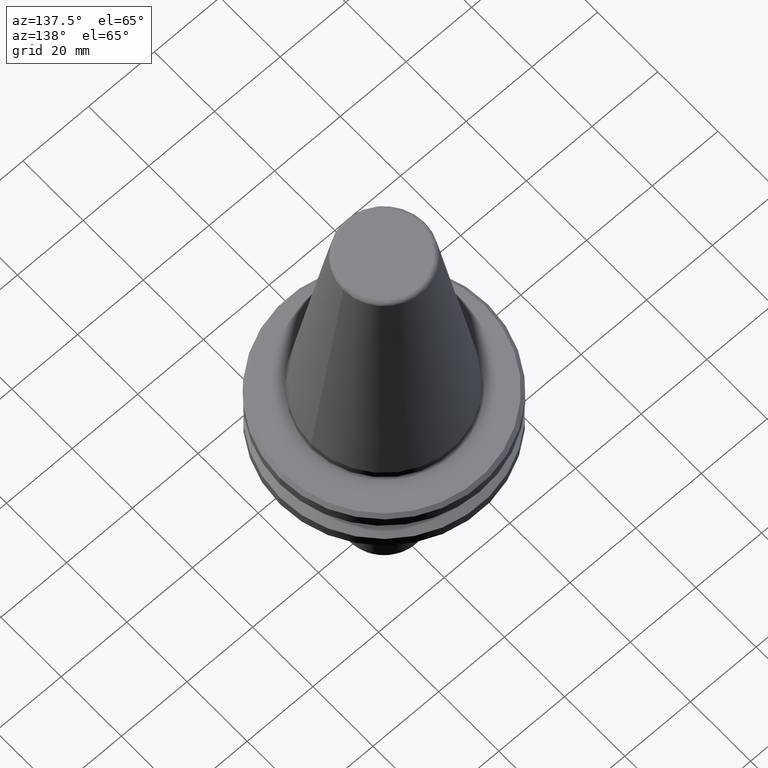
[diagram: clean part render]
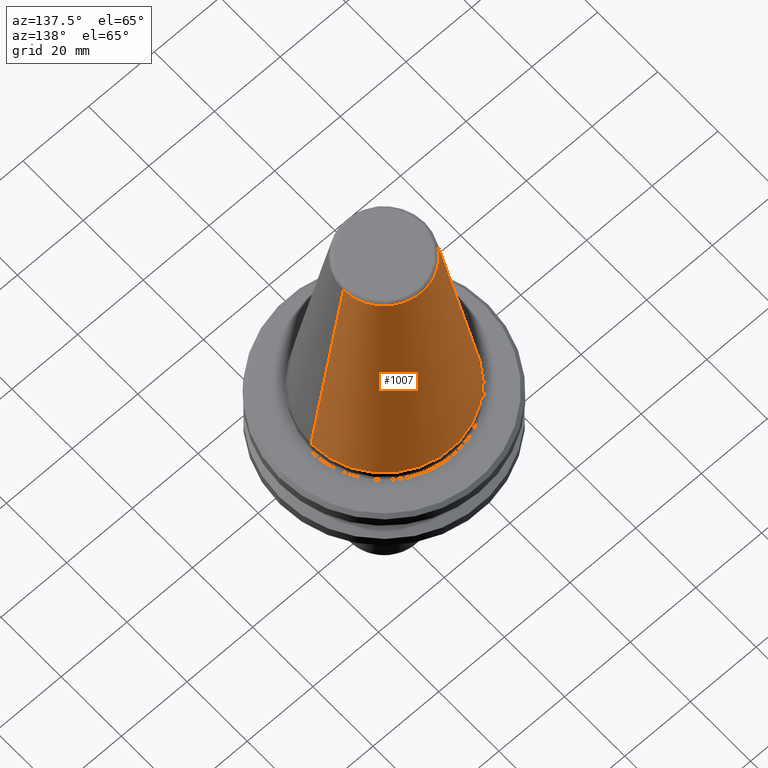
[diagram: same view with one face highlighted and labeled with its STEP entity id]
A machine part, auxiliary view. The second image highlights one B-rep face of the part: STEP entity #1007.
In plain terms, the highlighted conical surface has half-angle 8.297 deg.
Its self-contained STEP definition (entity closure, byte-faithful):
#95 = CARTESIAN_POINT ( 'NONE',  ( 22.22500000000000500, 0.0000000000000000000, 0.0000000000000000000 ) ) ;
#120 = LINE ( 'NONE', #446, #1256 ) ;
#146 = EDGE_LOOP ( 'NONE', ( #1157, #570, #1045, #1024 ) ) ;
#170 = EDGE_CURVE ( 'NONE', #1291, #927, #973, .T. ) ;
#328 = CARTESIAN_POINT ( 'NONE',  ( 12.37469537611110800, 2.118620309691396900E-015, 67.54430822726729400 ) ) ;
#353 = DIRECTION ( 'NONE',  ( 0.1443082272673070500, 1.767266086135363700E-017, -0.9895327864921743500 ) ) ;
#426 = VECTOR ( 'NONE', #608, 1000.000000000000000 ) ;
#446 = CARTESIAN_POINT ( 'NONE',  ( 22.22500000000000100, 2.721777511104992800E-015, 0.0000000000000000000 ) ) ;
#470 = CARTESIAN_POINT ( 'NONE',  ( -22.22500000000000500, 2.721777511104993200E-015, 0.0000000000000000000 ) ) ;
#483 = EDGE_CURVE ( 'NONE', #1291, #1048, #598, .T. ) ;
#495 = AXIS2_PLACEMENT_3D ( 'NONE', #656, #627, #743 ) ;
#528 = DIRECTION ( 'NONE',  ( -1.000000000000000000, 0.0000000000000000000, 6.244223985518314900E-016 ) ) ;
#533 = DIRECTION ( 'NONE',  ( -0.0000000000000000000, -0.0000000000000000000, 1.000000000000000000 ) ) ;
#534 = CARTESIAN_POINT ( 'NONE',  ( 0.0000000000000000000, 0.0000000000000000000, 0.0000000000000000000 ) ) ;
#542 = EDGE_CURVE ( 'NONE', #1435, #1048, #1502, .T. ) ;
#570 = ORIENTED_EDGE ( 'NONE', *, *, #1378, .T. ) ;
#598 = LINE ( 'NONE', #993, #426 ) ;
#608 = DIRECTION ( 'NONE',  ( -0.1443082272673070500, 0.0000000000000000000, -0.9895327864921743500 ) ) ;
#627 = DIRECTION ( 'NONE',  ( 0.0000000000000000000, 0.0000000000000000000, -1.000000000000000000 ) ) ;
#656 = CARTESIAN_POINT ( 'NONE',  ( 0.0000000000000000000, 0.0000000000000000000, 0.0000000000000000000 ) ) ;
#737 = FACE_OUTER_BOUND ( 'NONE', #146, .T. ) ;
#743 = DIRECTION ( 'NONE',  ( -1.000000000000000000, 0.0000000000000000000, 0.0000000000000000000 ) ) ;
#828 = CARTESIAN_POINT ( 'NONE',  ( -12.37469537611110800, 0.0000000000000000000, 67.54430822726729400 ) ) ;
#834 = AXIS2_PLACEMENT_3D ( 'NONE', #844, #1338, #1498 ) ;
#844 = CARTESIAN_POINT ( 'NONE',  ( 0.0000000000000000000, 0.0000000000000000000, 67.54430822726729400 ) ) ;
#927 = VERTEX_POINT ( 'NONE', #328 ) ;
#930 = AXIS2_PLACEMENT_3D ( 'NONE', #534, #533, #528 ) ;
#973 = CIRCLE ( 'NONE', #834, 12.37469537611110800 ) ;
#993 = CARTESIAN_POINT ( 'NONE',  ( -22.22500000000000100, 0.0000000000000000000, 0.0000000000000000000 ) ) ;
#1007 = ADVANCED_FACE ( 'NONE', ( #737 ), #1189, .T. ) ;
#1024 = ORIENTED_EDGE ( 'NONE', *, *, #483, .F. ) ;
#1045 = ORIENTED_EDGE ( 'NONE', *, *, #542, .T. ) ;
#1048 = VERTEX_POINT ( 'NONE', #470 ) ;
#1157 = ORIENTED_EDGE ( 'NONE', *, *, #170, .T. ) ;
#1189 = CONICAL_SURFACE ( 'NONE', #495, 22.22500000000000100, 0.1448138465474190500 ) ;
#1256 = VECTOR ( 'NONE', #353, 1000.000000000000000 ) ;
#1291 = VERTEX_POINT ( 'NONE', #828 ) ;
#1338 = DIRECTION ( 'NONE',  ( 0.0000000000000000000, 0.0000000000000000000, -1.000000000000000000 ) ) ;
#1378 = EDGE_CURVE ( 'NONE', #927, #1435, #120, .T. ) ;
#1435 = VERTEX_POINT ( 'NONE', #95 ) ;
#1498 = DIRECTION ( 'NONE',  ( -1.000000000000000000, 0.0000000000000000000, 0.0000000000000000000 ) ) ;
#1502 = CIRCLE ( 'NONE', #930, 22.22500000000000100 ) ;